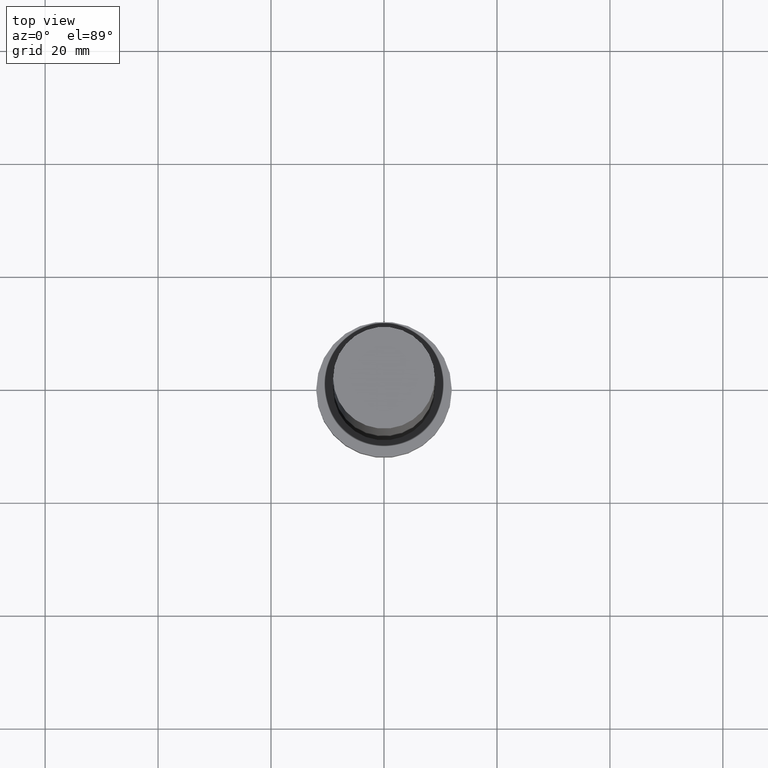
[diagram: clean part render]
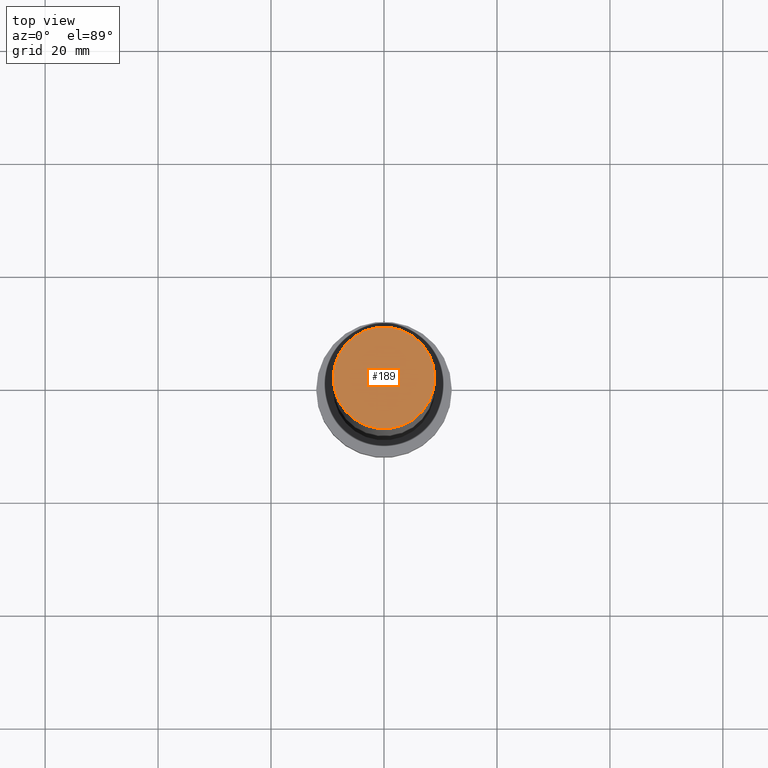
[diagram: same view with one face highlighted and labeled with its STEP entity id]
A machine part, top view. The second image highlights one B-rep face of the part: STEP entity #189.
In plain terms, the highlighted planar face has unit normal (0, 0, 1).
Its self-contained STEP definition (entity closure, byte-faithful):
#1 = CARTESIAN_POINT ( 'NONE',  ( 0.000000000000000000, 0.000000000000000000, 125.0000000000000000 ) ) ;
#18 = VERTEX_POINT ( 'NONE', #226 ) ;
#25 = CARTESIAN_POINT ( 'NONE',  ( -9.000000000000000000, 0.000000000000000000, 125.0000000000000000 ) ) ;
#27 = CARTESIAN_POINT ( 'NONE',  ( 0.000000000000000000, 0.000000000000000000, 125.0000000000000000 ) ) ;
#31 = DIRECTION ( 'NONE',  ( 1.000000000000000000, 0.000000000000000000, 0.000000000000000000 ) ) ;
#38 = ORIENTED_EDGE ( 'NONE', *, *, #72, .T. ) ;
#48 = CIRCLE ( 'NONE', #68, 9.000000000000000000 ) ;
#60 = ORIENTED_EDGE ( 'NONE', *, *, #198, .T. ) ;
#68 = AXIS2_PLACEMENT_3D ( 'NONE', #1, #169, #31 ) ;
#72 = EDGE_CURVE ( 'NONE', #242, #18, #197, .T. ) ;
#89 = AXIS2_PLACEMENT_3D ( 'NONE', #27, #122, #161 ) ;
#96 = CARTESIAN_POINT ( 'NONE',  ( 0.000000000000000000, 0.000000000000000000, 125.0000000000000000 ) ) ;
#102 = EDGE_LOOP ( 'NONE', ( #38, #60 ) ) ;
#116 = DIRECTION ( 'NONE',  ( 1.000000000000000000, 0.000000000000000000, -0.000000000000000000 ) ) ;
#120 = PLANE ( 'NONE',  #147 ) ;
#122 = DIRECTION ( 'NONE',  ( 0.000000000000000000, 0.000000000000000000, 1.000000000000000000 ) ) ;
#140 = FACE_OUTER_BOUND ( 'NONE', #102, .T. ) ;
#147 = AXIS2_PLACEMENT_3D ( 'NONE', #96, #205, #116 ) ;
#161 = DIRECTION ( 'NONE',  ( 1.000000000000000000, 0.000000000000000000, 0.000000000000000000 ) ) ;
#169 = DIRECTION ( 'NONE',  ( 0.000000000000000000, 0.000000000000000000, 1.000000000000000000 ) ) ;
#189 = ADVANCED_FACE ( 'NONE', ( #140 ), #120, .T. ) ;
#197 = CIRCLE ( 'NONE', #89, 9.000000000000000000 ) ;
#198 = EDGE_CURVE ( 'NONE', #18, #242, #48, .T. ) ;
#205 = DIRECTION ( 'NONE',  ( 0.000000000000000000, 0.000000000000000000, 1.000000000000000000 ) ) ;
#226 = CARTESIAN_POINT ( 'NONE',  ( 9.000000000000000000, 1.102182119232617714E-15, 125.0000000000000000 ) ) ;
#242 = VERTEX_POINT ( 'NONE', #25 ) ;